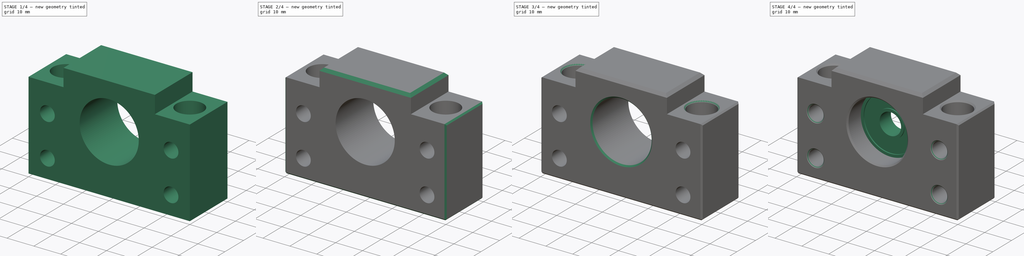
[diagram: build sequence overview — one tinted view per stage of 4, left to right]
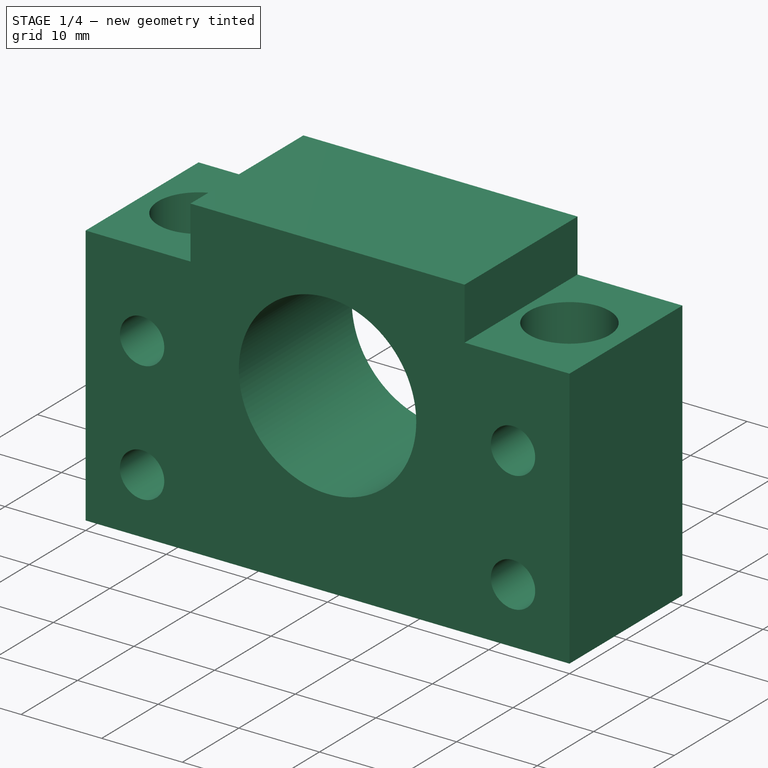
[diagram: stage 1 of 4 — iso view after this stage's code; geometry added in this stage tinted green]
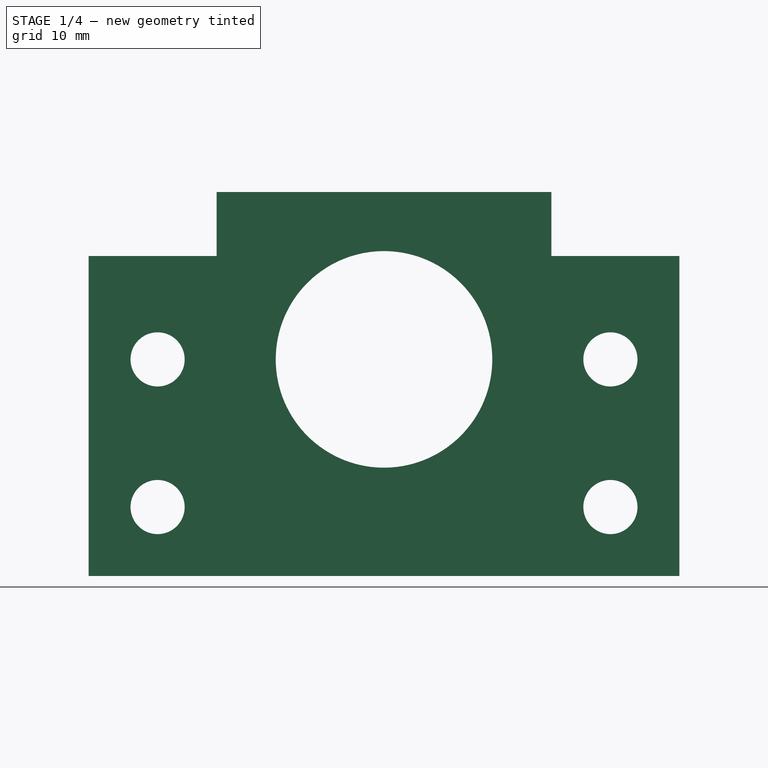
[diagram: stage 1 of 4 — front view after this stage's code; geometry added in this stage tinted green]
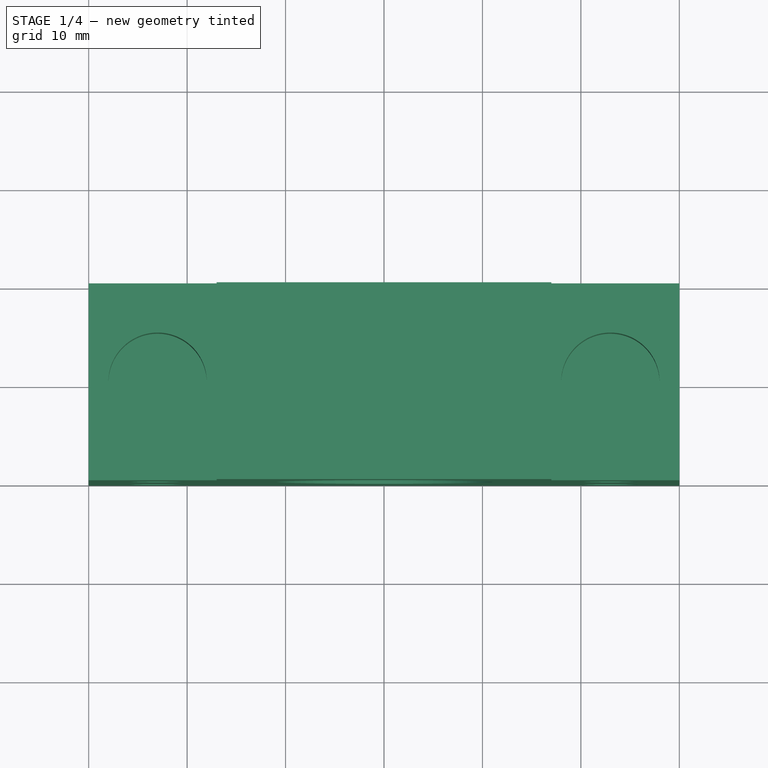
[diagram: stage 1 of 4 — top view after this stage's code; geometry added in this stage tinted green]
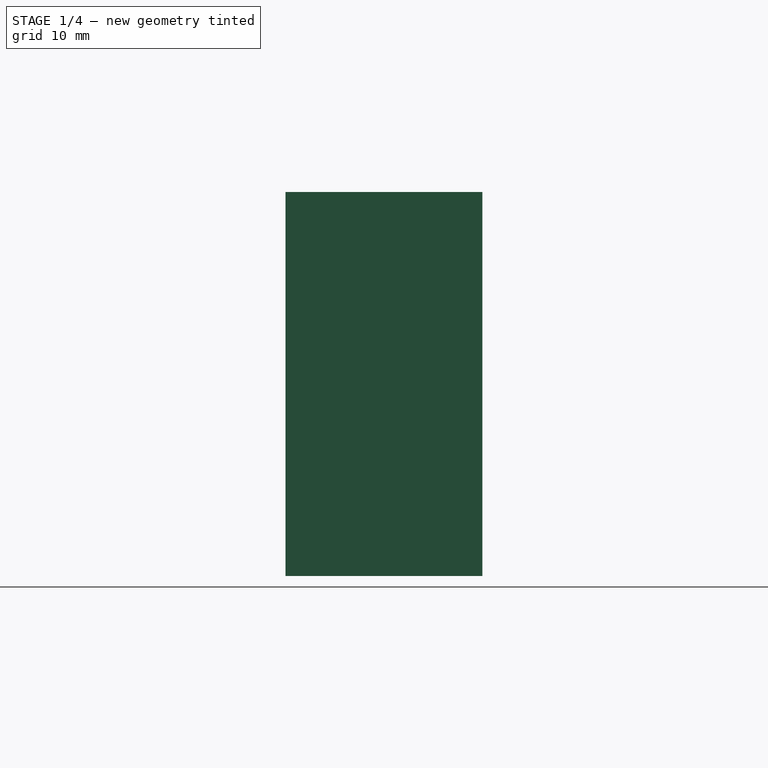
[diagram: stage 1 of 4 — right view after this stage's code; geometry added in this stage tinted green]
FCSTD DOCUMENT  (FreeCAD 0.15R4671 (Git))
Label: bf10
License: All rights reserved
LicenseURL: http://en.wikipedia.org/wiki/All_rights_reserved
objects: PartDesign::Chamfer×6, Sketcher::SketchObject×5, PartDesign::Pocket×3, PartDesign::Pad×1, PartDesign::Revolution×1, Part::MultiFuse×1
note: 22 computed .brp shape members not serialized (recipe doc carries the construction recipe); baked Part::Feature solids carry a one-line shape summary decoded from their .brp

FEATURE [Sketcher::SketchObject] Sketch  label="housing-sketch"
  Placement = pos=(0,0,0) rot=(1,0,0;1.5708rad)
  sketch-geometry (9):
    g0: LineSegment StartX=-30 StartY=32.5 StartZ=0 EndX=-30 EndY=0 EndZ=0
    g1: LineSegment StartX=-30 StartY=0 StartZ=0 EndX=30 EndY=0 EndZ=0
    g2: LineSegment StartX=30 StartY=0 StartZ=0 EndX=30 EndY=32.5 EndZ=0
    g3: LineSegment StartX=30 StartY=32.5 StartZ=0 EndX=17 EndY=32.5 EndZ=0
    g4: LineSegment StartX=17 StartY=32.5 StartZ=0 EndX=17 EndY=39 EndZ=0
    g5: LineSegment StartX=17 StartY=39 StartZ=0 EndX=-17 EndY=39 EndZ=0
    g6: LineSegment StartX=-17 StartY=39 StartZ=0 EndX=-17 EndY=32.5 EndZ=0
    g7: LineSegment StartX=-17 StartY=32.5 StartZ=0 EndX=-30 EndY=32.5 EndZ=0
    g8: Circle CenterX=0 CenterY=22 CenterZ=0 NormalX=0 NormalY=0 NormalZ=1 Radius=11
  constraints (27):
    c: PointOnObject(g0,g-1)
    c: Vertical(g0)
    c: Coincident(g0,g1)
    c: Horizontal(g1)
    c: Coincident(g1,g2)
    c: Vertical(g2)
    c: Coincident(g2,g3)
    c: Horizontal(g3)
    c: Coincident(g3,g4)
    c: Vertical(g4)
    c: Coincident(g4,g5)
    c: Horizontal(g5)
    c: Coincident(g5,g6)
    c: Vertical(g6)
    c: Coincident(g6,g7)
    c: Coincident(g7,g0)
    c: Horizontal(g7)
    c: PointOnObject(g6,g3)
    c: Symmetric(g0,g1,g-2)
    c: Symmetric(g5,g4,g-2)
    c: DistanceX(g0,g1) = 60
    c: DistanceX(g5,g4) = 34
    c: DistanceY(g4,g1) = -39
    c: DistanceY(g3,g1) = -32.5
    c: PointOnObject(g8,g-2)
    c: Radius(g8) = 11
    c: DistanceY(g8,g0) = -22
FEATURE [PartDesign::Pad] Pad  label="housing"
  Length = 20
  Length2 = 100
  Midplane = true
  Placement = pos=(0,0,0) rot=(1,0,0;1.5708rad)
  Sketch = -> Sketch
  Type = 0
FEATURE [Sketcher::SketchObject] Sketch001  label="housing-h-holes-sketch"
  Placement = pos=(0,-10,0) rot=(1,0,0;1.5708rad)
  Support = -> Pad [Face11]
  sketch-geometry (8):
    g0: LineSegment [constr] StartX=-23 StartY=22 StartZ=0 EndX=23 EndY=22 EndZ=0
    g1: LineSegment [constr] StartX=23 StartY=22 StartZ=0 EndX=23 EndY=7 EndZ=0
    g2: LineSegment [constr] StartX=23 StartY=7 StartZ=0 EndX=-23 EndY=7 EndZ=0
    g3: LineSegment [constr] StartX=-23 StartY=7 StartZ=0 EndX=-23 EndY=22 EndZ=0
    g4: Circle CenterX=-23 CenterY=22 CenterZ=0 NormalX=0 NormalY=0 NormalZ=1 Radius=2.75
    g5: Circle CenterX=23 CenterY=22 CenterZ=0 NormalX=0 NormalY=0 NormalZ=1 Radius=2.75
    g6: Circle CenterX=-23 CenterY=7 CenterZ=0 NormalX=0 NormalY=0 NormalZ=1 Radius=2.75
    g7: Circle CenterX=23 CenterY=7 CenterZ=0 NormalX=0 NormalY=0 NormalZ=1 Radius=2.75
  constraints (20):
    c: Coincident(g0,g1)
    c: Coincident(g1,g2)
    c: Coincident(g2,g3)
    c: Coincident(g3,g0)
    c: Horizontal(g0)
    c: Horizontal(g2)
    c: Vertical(g1)
    c: Vertical(g3)
    c: Symmetric(g2,g1,g-2)
    c: DistanceY(g-1,g0) = 22
    c: DistanceX(g2,g1) = 46
    c: DistanceY(g0,g2) = -15
    c: Coincident(g4,g0)
    c: Coincident(g5,g0)
    c: Coincident(g6,g2)
    c: Coincident(g7,g1)
    c: Radius(g7) = 2.75
    c: Equal(g7,g5)
    c: Equal(g7,g4)
    c: Equal(g7,g6)
FEATURE [PartDesign::Pocket] Pocket  label="housing-h-holes"
  Length = 5
  Placement = pos=(0,0,0) rot=(1,0,0;1.5708rad)
  Sketch = -> Sketch001
  Type = 1
FEATURE [Sketcher::SketchObject] Sketch003  label="housing-v-holes-top-sketch"
  Placement = pos=(0,0,32.5) rot=(0,0,1;3.14159rad)
  Support = -> Pocket [Face2]
  sketch-geometry (2):
    g0: Circle CenterX=-23 CenterY=0 CenterZ=0 NormalX=0 NormalY=0 NormalZ=1 Radius=5
    g1: Circle CenterX=23 CenterY=0 CenterZ=0 NormalX=0 NormalY=0 NormalZ=1 Radius=5
  constraints (6):
    c: PointOnObject(g0,g-1)
    c: PointOnObject(g1,g-1)
    c: Symmetric(g0,g1,g-2)
    c: Radius(g0) = 5
    c: Equal(g0,g1)
    c: DistanceX(g0,g1) = 46
FEATURE [PartDesign::Pocket] Pocket001  label="housing-v-holes-top"
  Length = 7
  Placement = pos=(0,0,0) rot=(1,0,0;1.5708rad)
  Sketch = -> Sketch003
  Type = 0
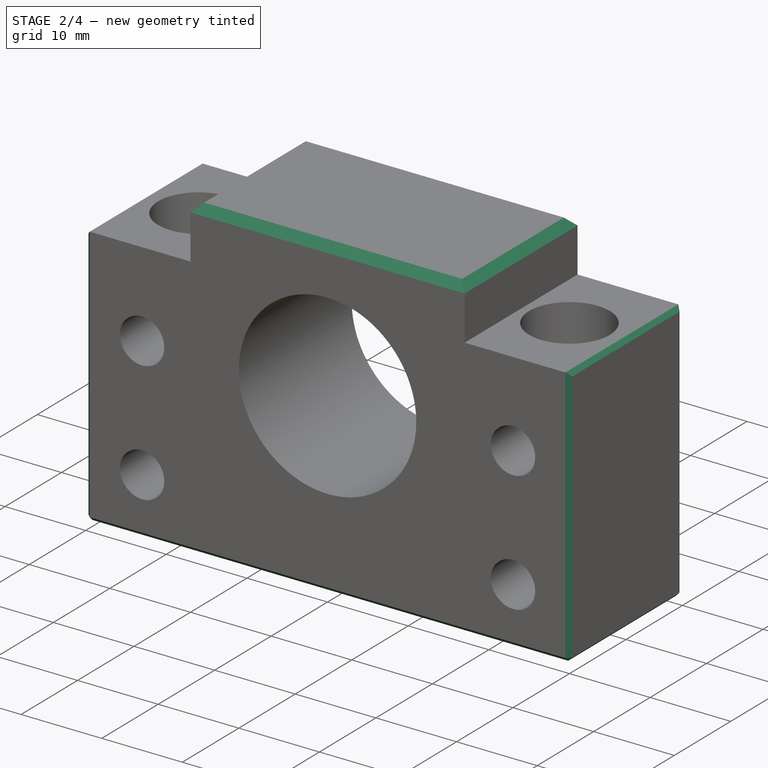
[diagram: stage 2 of 4 — iso view after this stage's code; geometry added in this stage tinted green]
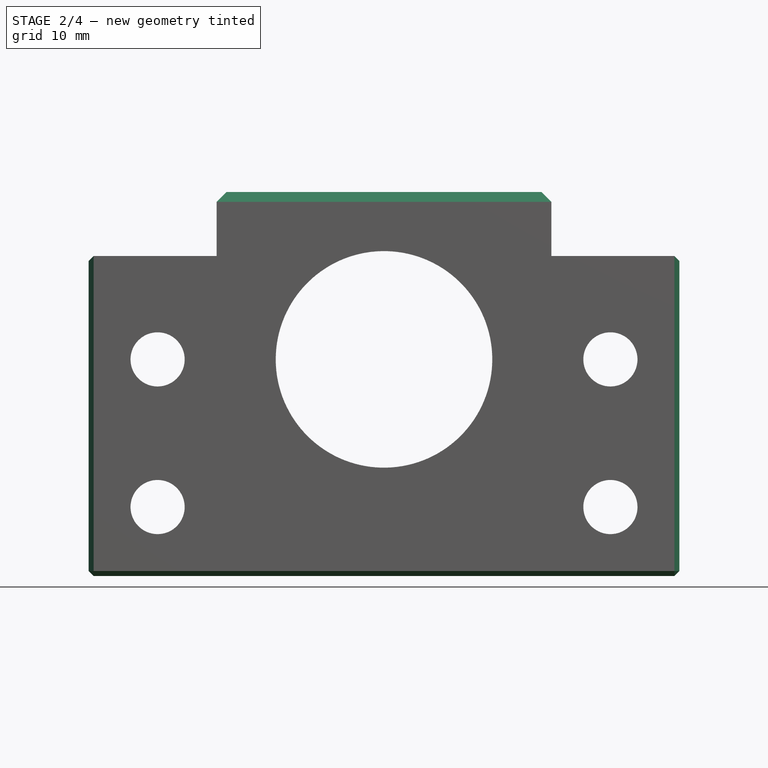
[diagram: stage 2 of 4 — front view after this stage's code; geometry added in this stage tinted green]
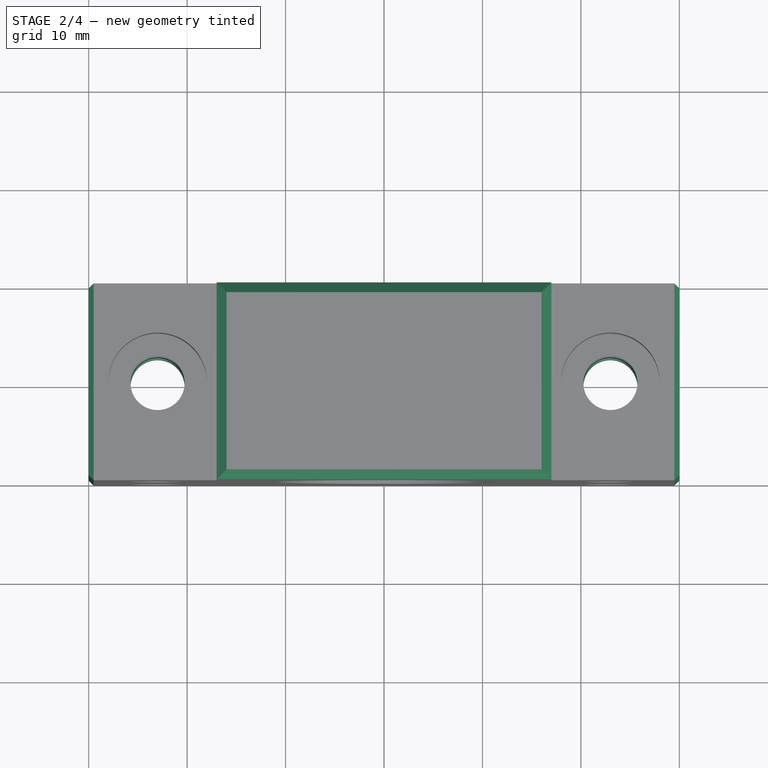
[diagram: stage 2 of 4 — top view after this stage's code; geometry added in this stage tinted green]
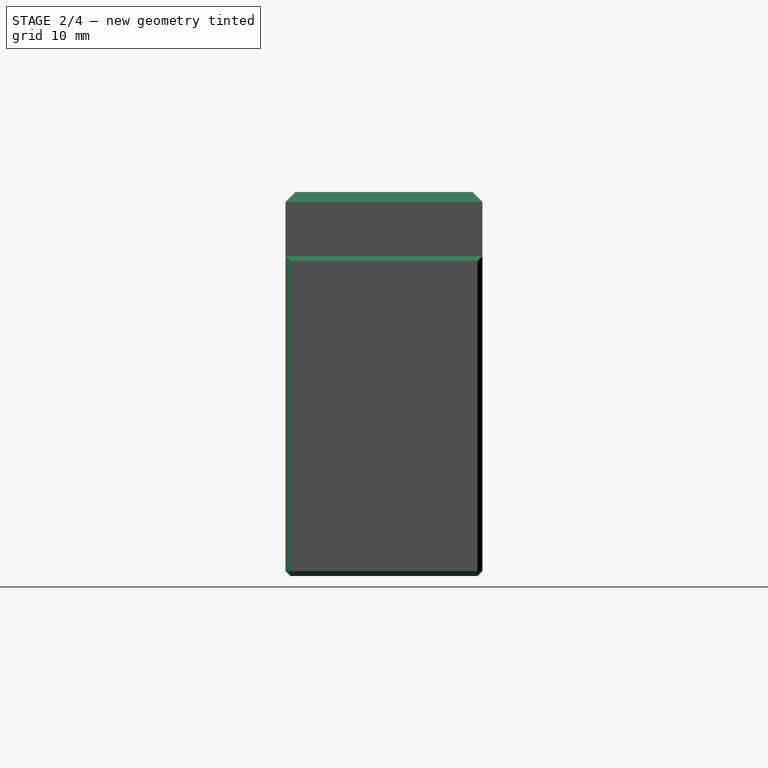
[diagram: stage 2 of 4 — right view after this stage's code; geometry added in this stage tinted green]
FEATURE [Sketcher::SketchObject] Sketch004  label="housing-v-holes-bottom-sketch"
  Placement = pos=(0,0,0) rot=(1,0,0;3.14159rad)
  Support = -> Pocket001 [Face3]
  sketch-geometry (2):
    g0: Circle CenterX=-23 CenterY=0 CenterZ=0 NormalX=0 NormalY=0 NormalZ=1 Radius=2.75
    g1: Circle CenterX=23 CenterY=0 CenterZ=0 NormalX=0 NormalY=0 NormalZ=1 Radius=2.75
  constraints (6):
    c: PointOnObject(g0,g-1)
    c: PointOnObject(g1,g-1)
    c: DistanceX(g1,g0) = -46
    c: Radius(g0) = 2.75
    c: Equal(g0,g1)
    c: Symmetric(g0,g1,g-2)
FEATURE [PartDesign::Pocket] Pocket002  label="housing-v-holes-bottom"
  Length = 5
  Placement = pos=(0,0,0) rot=(1,0,0;1.5708rad)
  Sketch = -> Sketch004
  Type = 1
FEATURE [PartDesign::Chamfer] Chamfer  label="housing-chamfer-top"
  Base = -> Pocket002 [Edge34,Edge16,Edge26,Edge46]
  Placement = pos=(0,0,0) rot=(1,0,0;1.5708rad)
  Size = 1
FEATURE [PartDesign::Chamfer] Chamfer001  label="housing-chamfer"
  Base = -> Chamfer [Edge28,Edge35,Edge8,Edge32,Edge31,Edge7,Edge26,Edge5,Edge21,Edge27]
  Placement = pos=(0,0,0) rot=(1,0,0;1.5708rad)
  Size = 0.5
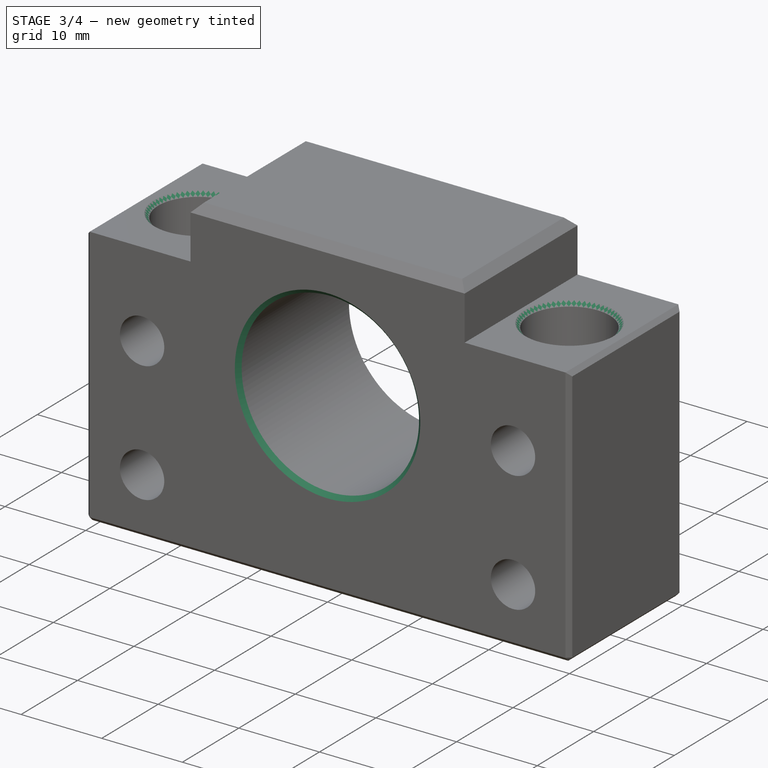
[diagram: stage 3 of 4 — iso view after this stage's code; geometry added in this stage tinted green]
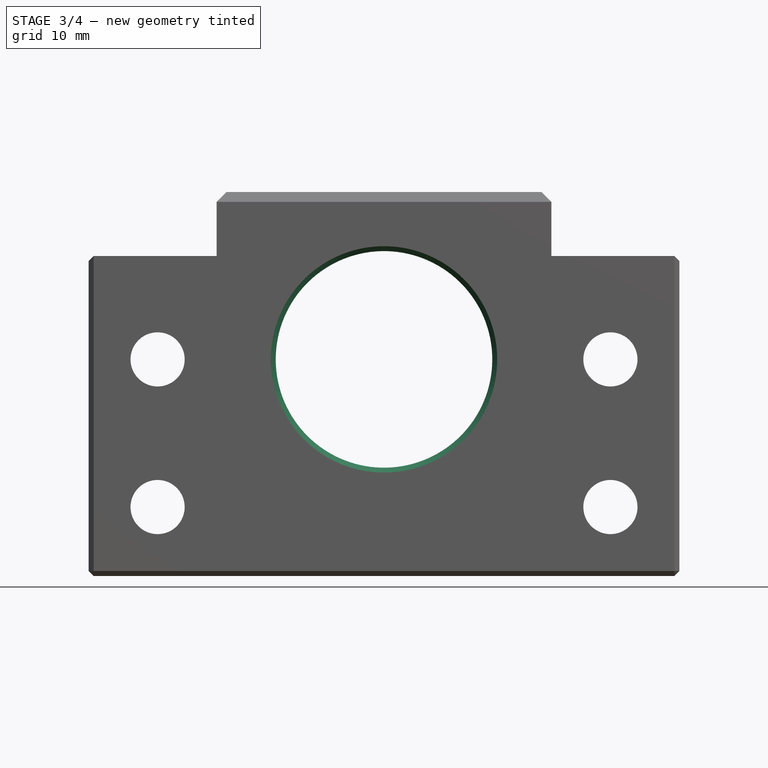
[diagram: stage 3 of 4 — front view after this stage's code; geometry added in this stage tinted green]
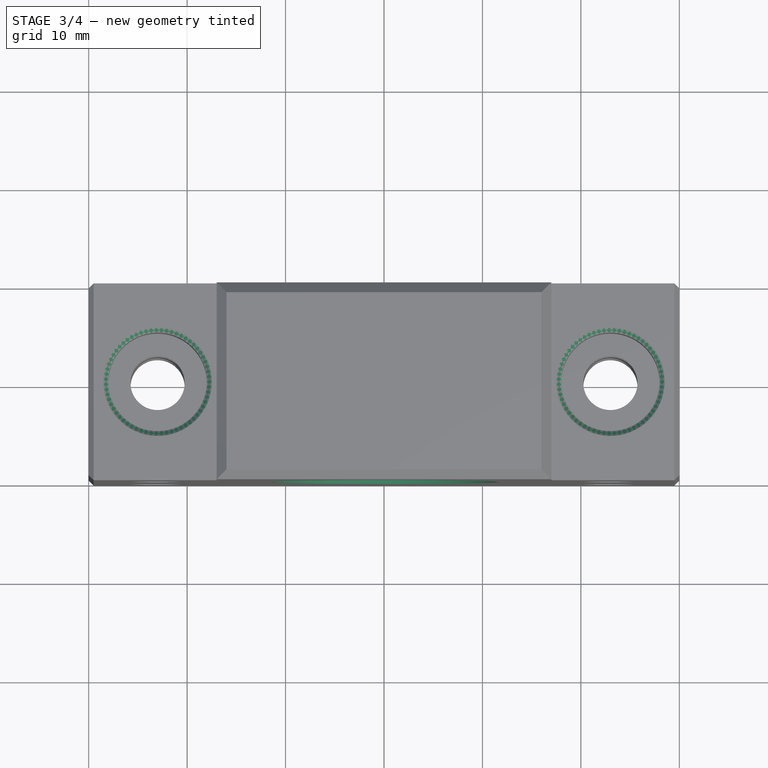
[diagram: stage 3 of 4 — top view after this stage's code; geometry added in this stage tinted green]
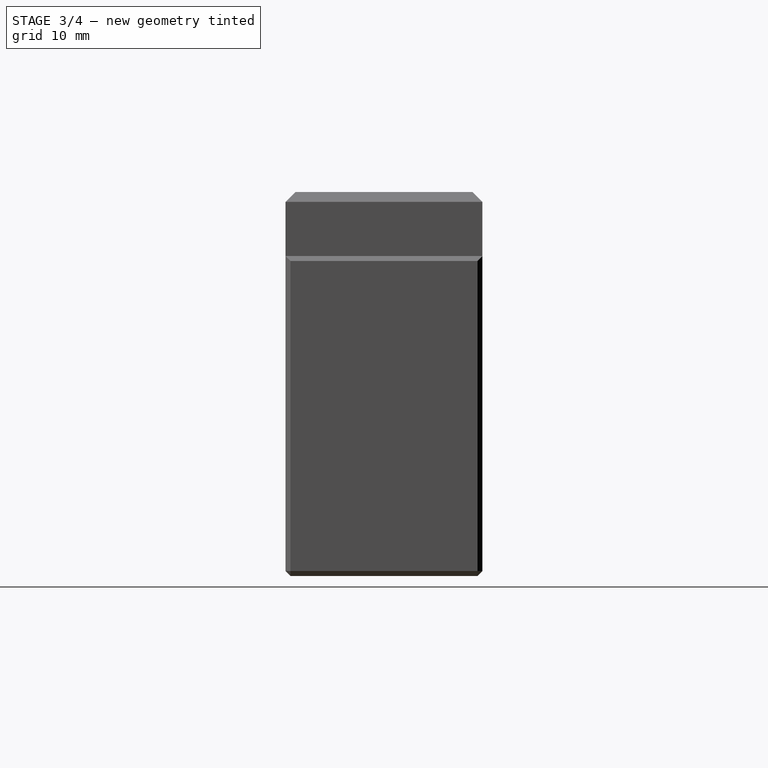
[diagram: stage 3 of 4 — right view after this stage's code; geometry added in this stage tinted green]
FEATURE [PartDesign::Chamfer] Chamfer002  label="housing-bearing-hole-chamfer"
  Base = -> Chamfer001 [Edge45,Edge11]
  Placement = pos=(0,0,0) rot=(1,0,0;1.5708rad)
  Size = 0.5
FEATURE [PartDesign::Chamfer] Chamfer003  label="housing-v-holes-top-chamfer"
  Base = -> Chamfer002 [Edge19,Edge39]
  Placement = pos=(0,0,0) rot=(1,0,0;1.5708rad)
  Size = 0.5
FEATURE [PartDesign::Chamfer] Chamfer004  label="housing-v-holes-bottom-chamfer"
  Base = -> Chamfer003 [Edge108,Edge109]
  Placement = pos=(0,0,0) rot=(1,0,0;1.5708rad)
  Size = 0.5
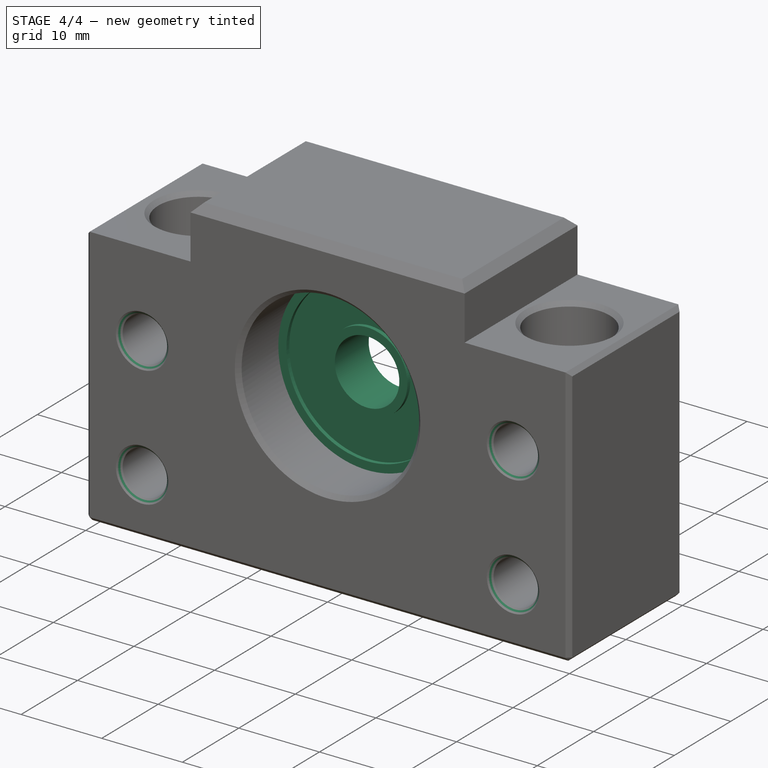
[diagram: stage 4 of 4 — iso view after this stage's code; geometry added in this stage tinted green]
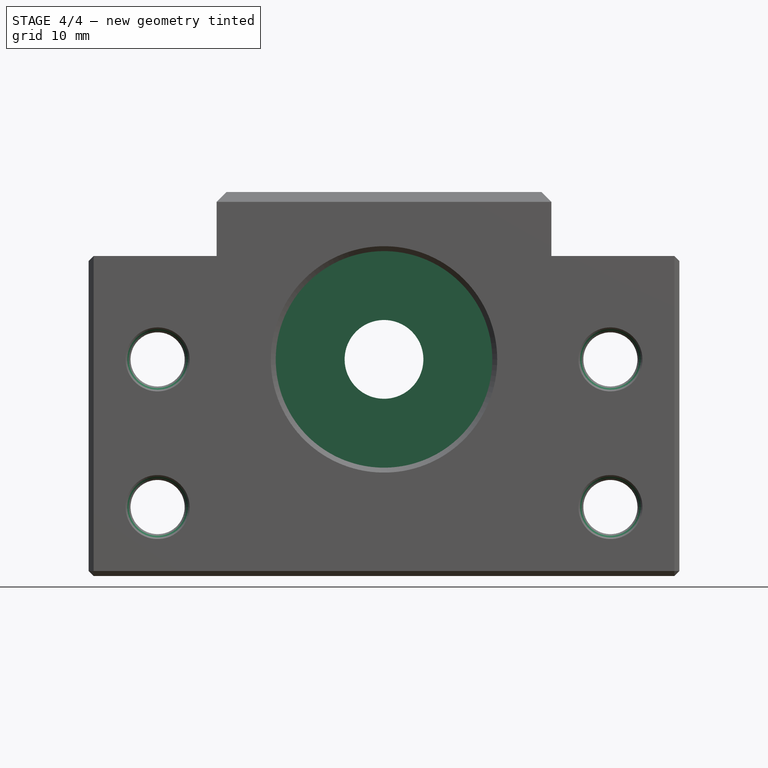
[diagram: stage 4 of 4 — front view after this stage's code; geometry added in this stage tinted green]
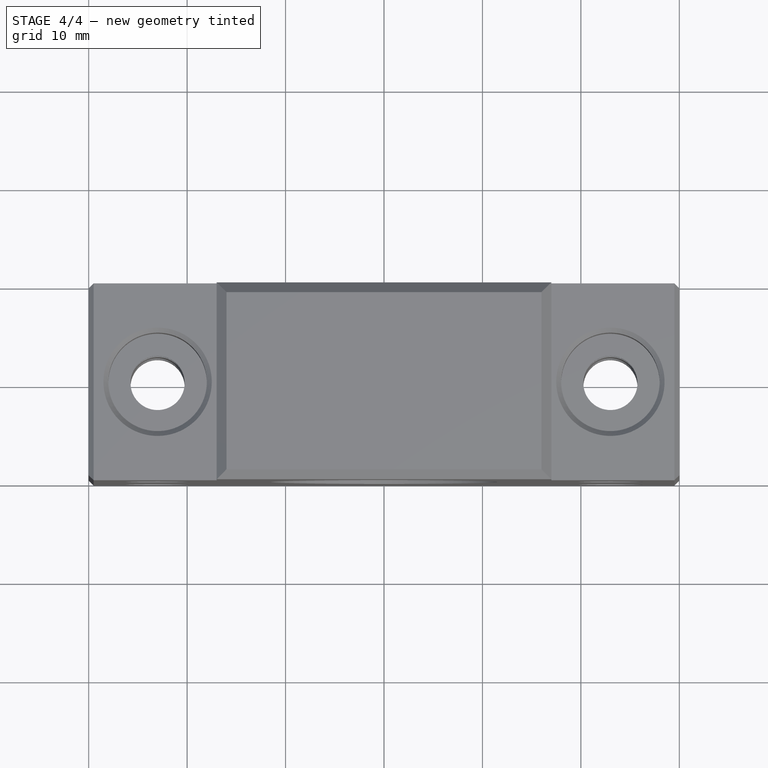
[diagram: stage 4 of 4 — top view after this stage's code; geometry added in this stage tinted green]
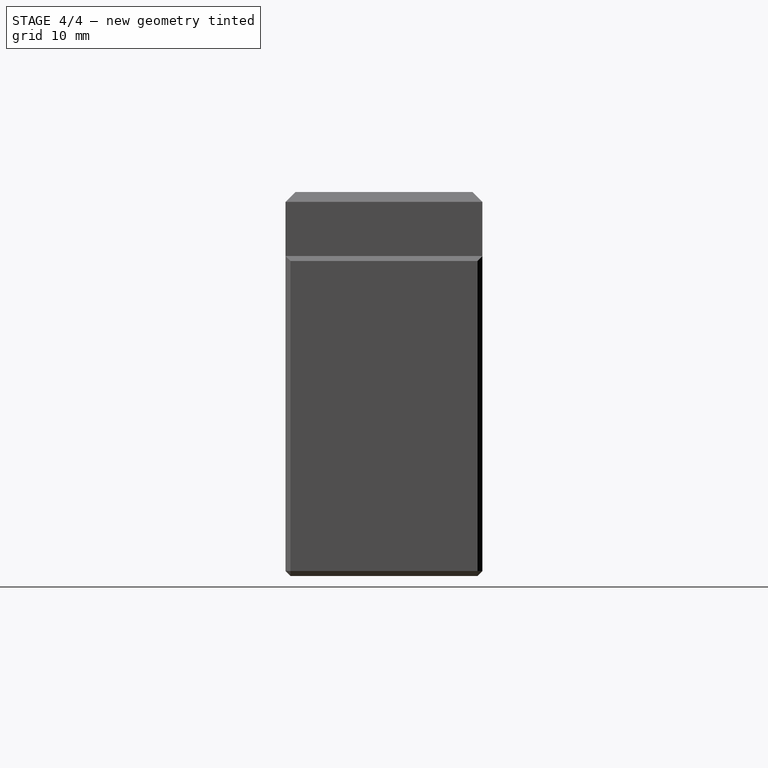
[diagram: stage 4 of 4 — right view after this stage's code; geometry added in this stage tinted green]
FEATURE [Sketcher::SketchObject] Sketch002  label="bearing-sketch"
  Placement = pos=(0,0,0) rot=(0.57735,0.57735,0.57735;2.0944rad)
  sketch-geometry (13):
    g0: LineSegment StartX=3 StartY=26 StartZ=0 EndX=-3 EndY=26 EndZ=0
    g1: LineSegment StartX=-3 StartY=26 StartZ=0 EndX=-3 EndY=27 EndZ=0
    g2: LineSegment StartX=-3 StartY=27 StartZ=0 EndX=-2.5 EndY=27 EndZ=0
    g3: LineSegment StartX=-2.5 StartY=27 StartZ=0 EndX=-2.5 EndY=32 EndZ=0
    g4: LineSegment StartX=-2.5 StartY=32 StartZ=0 EndX=-3 EndY=32 EndZ=0
    g5: LineSegment StartX=-3 StartY=32 StartZ=0 EndX=-3 EndY=33 EndZ=0
    g6: LineSegment StartX=-3 StartY=33 StartZ=0 EndX=3 EndY=33 EndZ=0
    g7: LineSegment StartX=3 StartY=33 StartZ=0 EndX=3 EndY=32 EndZ=0
    g8: LineSegment StartX=3 StartY=32 StartZ=0 EndX=2.5 EndY=32 EndZ=0
    g9: LineSegment StartX=2.5 StartY=32 StartZ=0 EndX=2.5 EndY=27 EndZ=0
    g10: LineSegment StartX=2.5 StartY=27 StartZ=0 EndX=3 EndY=27 EndZ=0
    g11: LineSegment StartX=3 StartY=27 StartZ=0 EndX=3 EndY=26 EndZ=0
    g12: LineSegment [constr] StartX=-10 StartY=22 StartZ=0 EndX=10 EndY=22 EndZ=0
  constraints (40):
    c: Horizontal(g0)
    c: Coincident(g0,g1)
    c: Coincident(g1,g2)
    c: Horizontal(g2)
    c: Coincident(g2,g3)
    c: Vertical(g3)
    c: Coincident(g3,g4)
    c: Horizontal(g4)
    c: Coincident(g4,g5)
    c: Vertical(g5)
    c: Coincident(g5,g6)
    c: Horizontal(g6)
    c: Coincident(g6,g7)
    c: Vertical(g7)
    c: Coincident(g7,g8)
    c: Horizontal(g8)
    c: Coincident(g8,g9)
    c: Vertical(g9)
    c: Coincident(g9,g10)
    c: Horizontal(g10)
    c: Coincident(g10,g11)
    c: Coincident(g11,g0)
    c: Vertical(g11)
    c: Vertical(g1)
    c: PointOnObject(g4,g1)
    c: PointOnObject(g7,g11)
    c: Equal(g2,g10)
    c: Symmetric(g0,g0,g-2)
    c: Equal(g5,g1)
    c: PointOnObject(g8,g4)
    c: PointOnObject(g9,g2)
    c: DistanceX(g2,g1) = -0.5
    c: DistanceX(g0,g0) = -6
    c: DistanceY(g6,g0) = -7
    c: DistanceY(g1,g0) = -1
    c: Horizontal(g12)
    c: Symmetric(g12,g12,g-2)
    c: DistanceX(g12,g12) = 20
    c: DistanceY(g-1,g12) = 22
    c: DistanceY(g0,g12) = -4
FEATURE [PartDesign::Revolution] Revolution  label="bearing"
  Angle = 360
  Axis = (0,20,0)
  Base = (0,-10,22)
  Midplane = true
  Placement = pos=(0,0,0) rot=(0.57735,0.57735,0.57735;2.0944rad)
  ReferenceAxis = -> Sketch002 [Axis0]
  Sketch = -> Sketch002
FEATURE [PartDesign::Chamfer] Chamfer005  label="housing-h-holes-chamfer"
  Base = -> Chamfer004 [Edge55,Edge56,Edge57,Edge54,Edge40,Edge43,Edge42,Edge41]
  Placement = pos=(0,0,0) rot=(1,0,0;1.5708rad)
  Size = 0.5
FEATURE [Part::MultiFuse] Fusion  label="bf10"
  Shapes = -> [Revolution,Chamfer005]
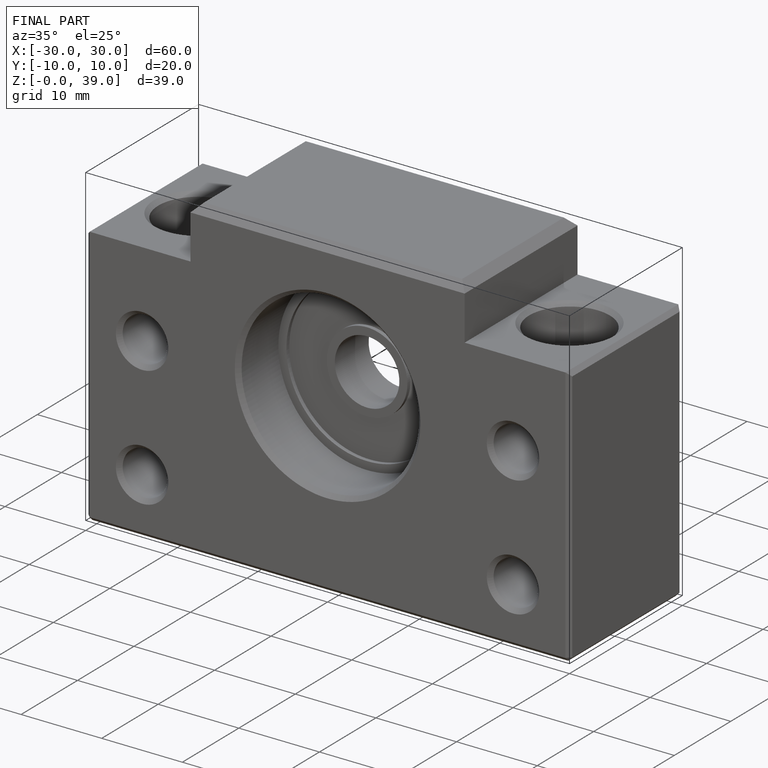
[diagram: finished part — iso view with bounding-box wireframe]
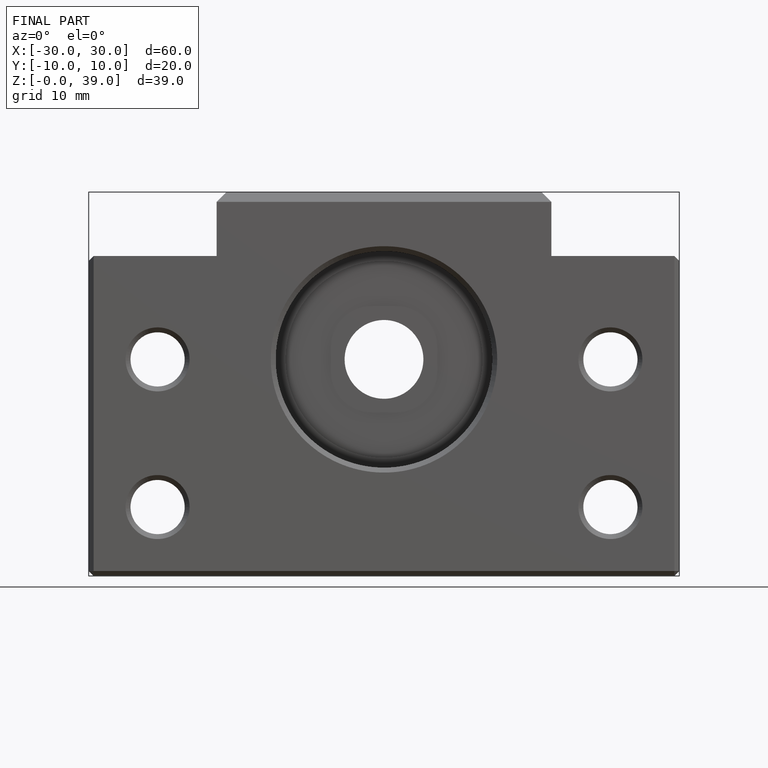
[diagram: finished part — front view with bounding-box wireframe]
